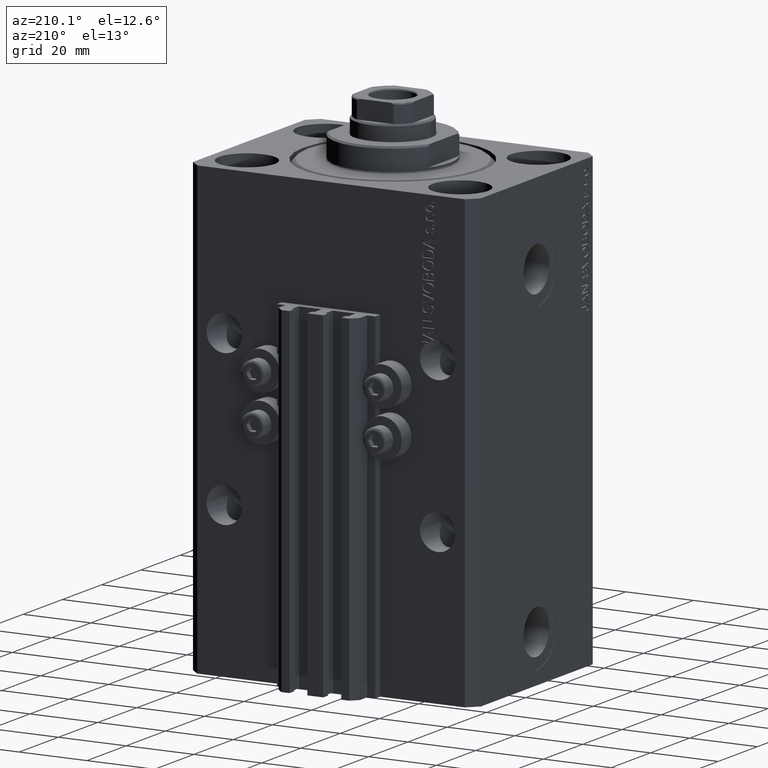
[diagram: clean part render]
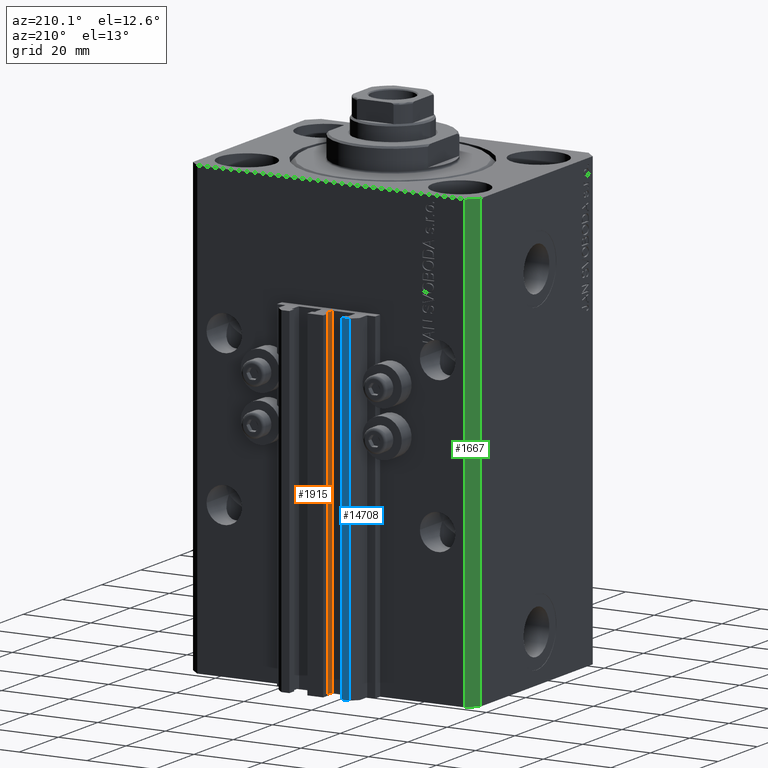
[diagram: same view with three faces highlighted in distinct colors, each labeled with its STEP entity id]
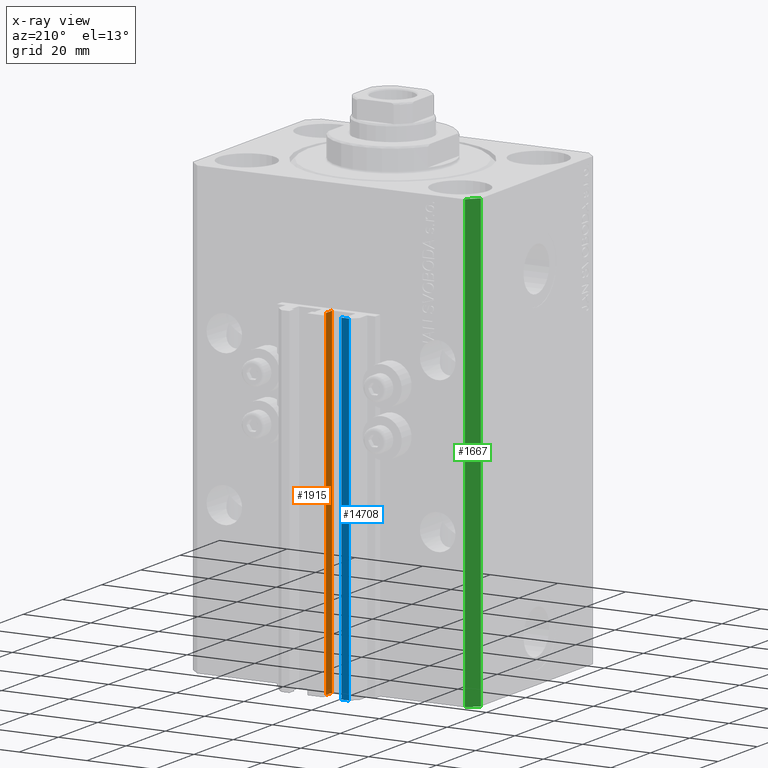
[diagram: x-ray of the same camera — body ghosted, the three highlighted faces saturated]
A machine part, auxiliary view with three faces highlighted in distinct colors.
The next image is the same camera in x-ray (body ghosted, the three faces saturated) — at least one of them is partly hidden behind the body in this view.
Their STEP definitions:

[orange] entity #1915 — the highlighted planar face has unit normal (-1, 0, 0).
#482 = EDGE_CURVE ( 'NONE', #6920, #28607, #44082, .T. ) ;
#705 = EDGE_CURVE ( 'NONE', #6920, #11864, #44774, .T. ) ;
#1503 = LINE ( 'NONE', #8890, #22684 ) ;
#1915 = ADVANCED_FACE ( 'NONE', ( #14223 ), #36350, .T. ) ;
#6713 = DIRECTION ( 'NONE',  ( -6.776263578034385456E-17, -1.000000000000000000, 0.000000000000000000 ) ) ;
#6920 = VERTEX_POINT ( 'NONE', #38424 ) ;
#7347 = EDGE_LOOP ( 'NONE', ( #18383, #42663, #28366, #25378 ) ) ;
#8890 = CARTESIAN_POINT ( 'NONE',  ( -1.600000000000000533, 36.90000000000000568, -33.00000000000000000 ) ) ;
#9354 = DIRECTION ( 'NONE',  ( -1.000000000000000000, 6.776263578034385456E-17, 0.000000000000000000 ) ) ;
#11833 = DIRECTION ( 'NONE',  ( -6.776263578034385456E-17, -1.000000000000000000, 0.000000000000000000 ) ) ;
#11864 = VERTEX_POINT ( 'NONE', #47769 ) ;
#12941 = VECTOR ( 'NONE', #25321, 1000.000000000000000 ) ;
#14035 = CARTESIAN_POINT ( 'NONE',  ( -1.600000000000001421, 36.90000000000000568, -133.0000000000000000 ) ) ;
#14223 = FACE_OUTER_BOUND ( 'NONE', #7347, .T. ) ;
#15373 = DIRECTION ( 'NONE',  ( 0.000000000000000000, 0.000000000000000000, 1.000000000000000000 ) ) ;
#18244 = EDGE_CURVE ( 'NONE', #28607, #21661, #41448, .T. ) ;
#18383 = ORIENTED_EDGE ( 'NONE', *, *, #23799, .F. ) ;
#20066 = CARTESIAN_POINT ( 'NONE',  ( -1.600000000000000755, 33.70000000000000284, -133.0000000000000000 ) ) ;
#21661 = VERTEX_POINT ( 'NONE', #34294 ) ;
#22684 = VECTOR ( 'NONE', #11833, 1000.000000000000000 ) ;
#23799 = EDGE_CURVE ( 'NONE', #11864, #21661, #1503, .T. ) ;
#24336 = DIRECTION ( 'NONE',  ( -6.776263578034385456E-17, -1.000000000000000000, 0.000000000000000000 ) ) ;
#25321 = DIRECTION ( 'NONE',  ( 0.000000000000000000, 0.000000000000000000, 1.000000000000000000 ) ) ;
#25378 = ORIENTED_EDGE ( 'NONE', *, *, #18244, .T. ) ;
#27946 = VECTOR ( 'NONE', #15373, 1000.000000000000000 ) ;
#28366 = ORIENTED_EDGE ( 'NONE', *, *, #482, .T. ) ;
#28607 = VERTEX_POINT ( 'NONE', #20066 ) ;
#34137 = VECTOR ( 'NONE', #6713, 1000.000000000000000 ) ;
#34294 = CARTESIAN_POINT ( 'NONE',  ( -1.600000000000000755, 33.70000000000000284, -33.00000000000000000 ) ) ;
#36350 = PLANE ( 'NONE',  #46764 ) ;
#38424 = CARTESIAN_POINT ( 'NONE',  ( -1.600000000000001421, 36.90000000000000568, -133.0000000000000000 ) ) ;
#39812 = CARTESIAN_POINT ( 'NONE',  ( -1.600000000000000533, 36.90000000000000568, -133.0000000000000000 ) ) ;
#40381 = CARTESIAN_POINT ( 'NONE',  ( -1.600000000000000533, 36.90000000000000568, -133.0000000000000000 ) ) ;
#41448 = LINE ( 'NONE', #44893, #27946 ) ;
#42663 = ORIENTED_EDGE ( 'NONE', *, *, #705, .F. ) ;
#44082 = LINE ( 'NONE', #40381, #34137 ) ;
#44774 = LINE ( 'NONE', #14035, #12941 ) ;
#44893 = CARTESIAN_POINT ( 'NONE',  ( -1.600000000000000755, 33.70000000000000284, -133.0000000000000000 ) ) ;
#46764 = AXIS2_PLACEMENT_3D ( 'NONE', #39812, #9354, #24336 ) ;
#47769 = CARTESIAN_POINT ( 'NONE',  ( -1.600000000000001421, 36.90000000000000568, -33.00000000000000000 ) ) ;

[blue] entity #14708 — the highlighted planar face has unit normal (0, 1, 0).
#530 = PLANE ( 'NONE',  #11344 ) ;
#3523 = VECTOR ( 'NONE', #25417, 1000.000000000000000 ) ;
#4316 = EDGE_CURVE ( 'NONE', #37930, #27744, #13172, .T. ) ;
#4909 = CARTESIAN_POINT ( 'NONE',  ( -10.00000000000000000, 39.49999999999999289, -133.0000000000000000 ) ) ;
#6720 = CARTESIAN_POINT ( 'NONE',  ( -7.650000000000002132, 39.49999999999999289, -33.00000000000000000 ) ) ;
#8168 = FACE_OUTER_BOUND ( 'NONE', #32936, .T. ) ;
#9420 = EDGE_CURVE ( 'NONE', #40510, #16708, #18610, .T. ) ;
#9461 = CARTESIAN_POINT ( 'NONE',  ( -7.650000000000002132, 39.49999999999999289, -133.0000000000000000 ) ) ;
#10238 = ORIENTED_EDGE ( 'NONE', *, *, #36561, .F. ) ;
#11119 = DIRECTION ( 'NONE',  ( 0.000000000000000000, 0.000000000000000000, 1.000000000000000000 ) ) ;
#11344 = AXIS2_PLACEMENT_3D ( 'NONE', #26339, #41117, #11119 ) ;
#11460 = DIRECTION ( 'NONE',  ( 0.000000000000000000, 0.000000000000000000, 1.000000000000000000 ) ) ;
#13172 = LINE ( 'NONE', #47588, #3523 ) ;
#14708 = ADVANCED_FACE ( 'NONE', ( #8168 ), #530, .T. ) ;
#15569 = LINE ( 'NONE', #23915, #32388 ) ;
#16708 = VERTEX_POINT ( 'NONE', #6720 ) ;
#16885 = ORIENTED_EDGE ( 'NONE', *, *, #9420, .F. ) ;
#17181 = ORIENTED_EDGE ( 'NONE', *, *, #20715, .T. ) ;
#17812 = VECTOR ( 'NONE', #11460, 1000.000000000000000 ) ;
#18610 = LINE ( 'NONE', #29170, #17812 ) ;
#20182 = CARTESIAN_POINT ( 'NONE',  ( -7.650000000000002132, 39.49999999999999289, -133.0000000000000000 ) ) ;
#20715 = EDGE_CURVE ( 'NONE', #40510, #37930, #36216, .T. ) ;
#22938 = DIRECTION ( 'NONE',  ( -1.000000000000000000, 0.000000000000000000, 0.000000000000000000 ) ) ;
#23915 = CARTESIAN_POINT ( 'NONE',  ( -7.650000000000002132, 39.49999999999999289, -33.00000000000000000 ) ) ;
#25417 = DIRECTION ( 'NONE',  ( 0.000000000000000000, 0.000000000000000000, 1.000000000000000000 ) ) ;
#26339 = CARTESIAN_POINT ( 'NONE',  ( -7.650000000000002132, 39.49999999999999289, -133.0000000000000000 ) ) ;
#27744 = VERTEX_POINT ( 'NONE', #35536 ) ;
#29170 = CARTESIAN_POINT ( 'NONE',  ( -7.650000000000002132, 39.49999999999999289, -133.0000000000000000 ) ) ;
#32388 = VECTOR ( 'NONE', #22938, 1000.000000000000000 ) ;
#32936 = EDGE_LOOP ( 'NONE', ( #10238, #16885, #17181, #41327 ) ) ;
#35536 = CARTESIAN_POINT ( 'NONE',  ( -10.00000000000000000, 39.49999999999999289, -33.00000000000000000 ) ) ;
#36216 = LINE ( 'NONE', #9461, #44529 ) ;
#36561 = EDGE_CURVE ( 'NONE', #16708, #27744, #15569, .T. ) ;
#37930 = VERTEX_POINT ( 'NONE', #4909 ) ;
#40510 = VERTEX_POINT ( 'NONE', #20182 ) ;
#41117 = DIRECTION ( 'NONE',  ( 0.000000000000000000, 1.000000000000000000, -0.000000000000000000 ) ) ;
#41327 = ORIENTED_EDGE ( 'NONE', *, *, #4316, .T. ) ;
#44529 = VECTOR ( 'NONE', #46836, 1000.000000000000000 ) ;
#46836 = DIRECTION ( 'NONE',  ( -1.000000000000000000, 0.000000000000000000, 0.000000000000000000 ) ) ;
#47588 = CARTESIAN_POINT ( 'NONE',  ( -10.00000000000000000, 39.49999999999999289, -133.0000000000000000 ) ) ;

[green] entity #1667 — the highlighted planar face has unit normal (-0.7071, 0.7071, 0).
#466 = VECTOR ( 'NONE', #30062, 1000.000000000000000 ) ;
#1667 = ADVANCED_FACE ( 'NONE', ( #19672 ), #4174, .T. ) ;
#1976 = AXIS2_PLACEMENT_3D ( 'NONE', #38098, #4421, #23354 ) ;
#3659 = LINE ( 'NONE', #26504, #17844 ) ;
#3860 = ORIENTED_EDGE ( 'NONE', *, *, #9114, .T. ) ;
#4041 = CARTESIAN_POINT ( 'NONE',  ( -42.50000000000000000, 28.50000000000000000, -133.0000000000000000 ) ) ;
#4174 = PLANE ( 'NONE',  #1976 ) ;
#4421 = DIRECTION ( 'NONE',  ( -0.7071067811865479058, 0.7071067811865472397, 0.000000000000000000 ) ) ;
#4904 = VERTEX_POINT ( 'NONE', #4041 ) ;
#5429 = EDGE_LOOP ( 'NONE', ( #46217, #33824, #3860, #9999 ) ) ;
#6390 = CARTESIAN_POINT ( 'NONE',  ( -42.50000000000000000, 28.50000000000000000, -133.0000000000000000 ) ) ;
#7614 = EDGE_CURVE ( 'NONE', #28246, #41808, #10907, .T. ) ;
#9114 = EDGE_CURVE ( 'NONE', #28246, #4904, #3659, .T. ) ;
#9999 = ORIENTED_EDGE ( 'NONE', *, *, #11473, .T. ) ;
#10398 = CARTESIAN_POINT ( 'NONE',  ( -39.50000000000000711, 31.50000000000000000, 0.000000000000000000 ) ) ;
#10907 = LINE ( 'NONE', #34239, #466 ) ;
#11473 = EDGE_CURVE ( 'NONE', #4904, #35011, #32686, .T. ) ;
#14493 = CARTESIAN_POINT ( 'NONE',  ( -39.50000000000000711, 31.50000000000000000, -133.0000000000000000 ) ) ;
#15168 = CARTESIAN_POINT ( 'NONE',  ( -39.50000000000000711, 31.50000000000000000, 0.000000000000000000 ) ) ;
#17844 = VECTOR ( 'NONE', #41280, 1000.000000000000000 ) ;
#18273 = LINE ( 'NONE', #10398, #46155 ) ;
#19672 = FACE_OUTER_BOUND ( 'NONE', #5429, .T. ) ;
#20768 = EDGE_CURVE ( 'NONE', #41808, #35011, #18273, .T. ) ;
#23040 = CARTESIAN_POINT ( 'NONE',  ( -42.50000000000000000, 28.50000000000000000, 0.000000000000000000 ) ) ;
#23354 = DIRECTION ( 'NONE',  ( -0.7071067811865472397, -0.7071067811865479058, 0.000000000000000000 ) ) ;
#25063 = DIRECTION ( 'NONE',  ( 0.000000000000000000, 0.000000000000000000, 1.000000000000000000 ) ) ;
#26504 = CARTESIAN_POINT ( 'NONE',  ( -39.50000000000000711, 31.50000000000000000, -133.0000000000000000 ) ) ;
#28246 = VERTEX_POINT ( 'NONE', #14493 ) ;
#30062 = DIRECTION ( 'NONE',  ( 0.000000000000000000, 0.000000000000000000, 1.000000000000000000 ) ) ;
#32686 = LINE ( 'NONE', #6390, #35960 ) ;
#33824 = ORIENTED_EDGE ( 'NONE', *, *, #7614, .F. ) ;
#34239 = CARTESIAN_POINT ( 'NONE',  ( -39.50000000000000711, 31.50000000000000000, -133.0000000000000000 ) ) ;
#35011 = VERTEX_POINT ( 'NONE', #23040 ) ;
#35960 = VECTOR ( 'NONE', #25063, 1000.000000000000000 ) ;
#38098 = CARTESIAN_POINT ( 'NONE',  ( -39.50000000000000711, 31.50000000000000000, -133.0000000000000000 ) ) ;
#41280 = DIRECTION ( 'NONE',  ( -0.7071067811865471286, -0.7071067811865479058, 0.000000000000000000 ) ) ;
#41808 = VERTEX_POINT ( 'NONE', #15168 ) ;
#44327 = DIRECTION ( 'NONE',  ( -0.7071067811865471286, -0.7071067811865479058, 0.000000000000000000 ) ) ;
#46155 = VECTOR ( 'NONE', #44327, 1000.000000000000000 ) ;
#46217 = ORIENTED_EDGE ( 'NONE', *, *, #20768, .F. ) ;